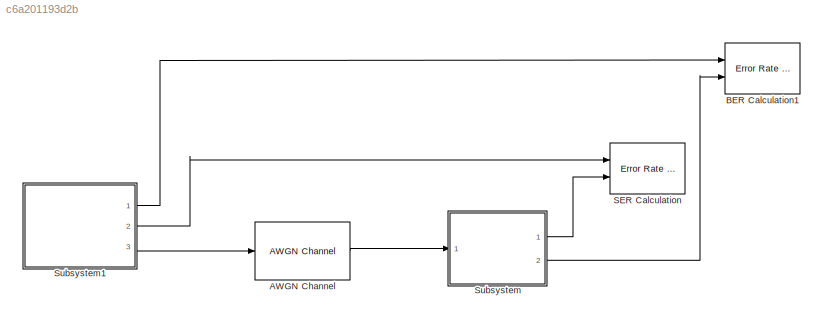
MODEL slx_c6a201193d2b
KIND model
BLOCK [Reference] AWGN Channel  REF=commchan3/AWGN
Channel
  EbNodB = 10
  EsNodB = SNR
  InputProcessing = Columns as channels (frame based)
  Ports = [1, 1]
  Ps = 5
  SNRdB = 10
  SourceBlock = commchan3/AWGN\nChannel
  SourceType = AWGN Channel
  Tsym = 1/100000
  UserDataPersistent = on
  bitsPerSym = 1
  noiseMode = Signal to noise ratio  (Es/No)
  seed = 67
  variance = 1
BLOCK [Reference] BER Calculation1  REF=commsink2/Error Rate
Calculation
  N = 0
  PMode = Workspace
  Ports = [2]
  RsMode2 = off
  SourceBlock = commsink2/Error Rate\nCalculation
  SourceType = Error Rate Calculation
  WsName = BER
  cp_mode = Entire frame
  maxBits = 1e6
  numErr = 100
  st_delay = 0
  stop = off
  subframe = []
BLOCK [Reference] SER Calculation  REF=commsink2/Error Rate
Calculation
  N = 0
  PMode = Workspace
  Ports = [2]
  RsMode2 = off
  SourceBlock = commsink2/Error Rate\nCalculation
  SourceType = Error Rate Calculation
  WsName = SER
  cp_mode = Entire frame
  maxBits = 1e6
  numErr = 100
  st_delay = 0
  stop = off
  subframe = []
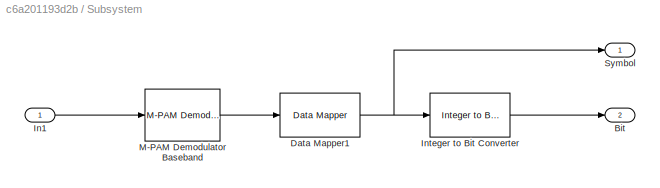
BLOCK [SubSystem] Subsystem
  Ports = [1, 2]
  RequestExecContextInheritance = off
BLOCK [Outport] Subsystem/Bit
  IconDisplay = Port number
  Port = 2
BLOCK [Reference] Subsystem/Data Mapper1  REF=commutil2/Data Mapper
  M = 4
  MapMode = Binary to Gray
  MapVec = [0 1 3 2 7 6 4 5]
  Ports = [1, 1]
  SourceBlock = commutil2/Data Mapper
  SourceType = Data Mapper
BLOCK [Inport] Subsystem/In1
  IconDisplay = Port number
BLOCK [Reference] Subsystem/Integer to Bit Converter  REF=commutil2/Integer to Bit
Converter
  Ports = [1, 1]
  SourceBlock = commutil2/Integer to Bit\nConverter
  SourceType = Integer to Bit Converter
  bitOrder = MSB first
  nbits = 2
  outDtype = Inherit via internal rule
  signedInputValues = Unsigned
BLOCK [Reference] Subsystem/M-PAM Demodulator Baseband  REF=commdigbbndam3/M-PAM
Demodulator
Baseband
  AvgPow = 1
  Dec = Gray
  M = 4
  MinDist = 2
  OutType = Integer
  PeakPow = 1
  Ports = [1, 1]
  PowType = Min. distance between symbols
  SourceBlock = commdigbbndam3/M-PAM\nDemodulator\nBaseband
  SourceType = M-PAM Demodulator Baseband
  denormFactorDTMode = Same word length as input
  denormFactorWordLen = 16
  outDtype1 = Inherit via internal rule
  outDtype2 = Inherit via internal rule
  prodOutDTMode = Inherit via internal rule
  prodOutOverflowMode = Wrap
  prodOutRoundingMode = Floor
  prodOutWordLen = 16
  sumDTMode = Inherit via internal rule
  sumWordLen = 16
BLOCK [Outport] Subsystem/Symbol
  IconDisplay = Port number
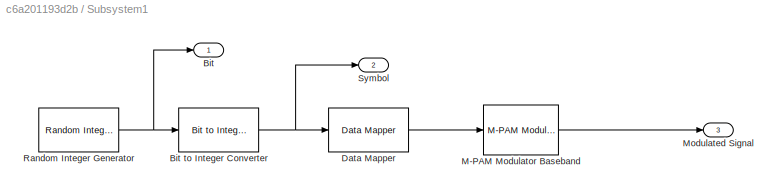
BLOCK [SubSystem] Subsystem1
  Ports = [0, 3]
  RequestExecContextInheritance = off
BLOCK [Outport] Subsystem1/Bit
  IconDisplay = Port number
BLOCK [Reference] Subsystem1/Bit to Integer Converter  REF=commutil2/Bit to Integer
Converter
  Ports = [1, 1]
  SourceBlock = commutil2/Bit to Integer\nConverter
  SourceType = Bit to Integer Converter
  bitOrder = MSB first
  nbits = 2
  outDtype = Inherit via internal rule
  outDtypeSigned = Inherit via internal rule
  signedOutputValues = Unsigned
BLOCK [Reference] Subsystem1/Data Mapper  REF=commutil2/Data Mapper
  M = 4
  MapMode = Binary to Gray
  MapVec = [0 1 3 2 7 6 4 5]
  Ports = [1, 1]
  SourceBlock = commutil2/Data Mapper
  SourceType = Data Mapper
BLOCK [Reference] Subsystem1/M-PAM Modulator Baseband  REF=commdigbbndam3/M-PAM
Modulator
Baseband
  AvgPow = 1
  Enc = Gray
  InType = Integer
  M = 4
  MinDist = 2
  PeakPow = 1
  Ports = [1, 1]
  PowType = Min. distance between symbols
  SourceBlock = commdigbbndam3/M-PAM\nModulator\nBaseband
  SourceType = M-PAM Modulator Baseband
  outDtype = double
  outFracLen = 15
  outFracLenMode = Best precision
  outUDDataType = sfix(16)
  outWordLen = 16
BLOCK [Outport] Subsystem1/Modulated Signal
  IconDisplay = Port number
  Port = 3
BLOCK [Reference] Subsystem1/Random Integer Generator  REF=commrandsrc2/Random Integer
Generator
  Ports = [0, 1]
  SourceBlock = commrandsrc2/Random Integer\nGenerator
  SourceType = Random Integer Generator
  Ts = 1/200000
  frameBased = on
  mul = 2
  orient = off
  outDataType = double
  sampPerFrame = 200000
  seed = 37
BLOCK [Outport] Subsystem1/Symbol
  IconDisplay = Port number
  Port = 2
LINE AWGN Channel:1 -> Subsystem:1
NET Subsystem/Data Mapper1:1 -> Subsystem/Integer to Bit Converter:1, Subsystem/Symbol:1
LINE Subsystem/In1:1 -> Subsystem/M-PAM Demodulator Baseband:1
LINE Subsystem/Integer to Bit Converter:1 -> Subsystem/Bit:1
LINE Subsystem/M-PAM Demodulator Baseband:1 -> Subsystem/Data Mapper1:1
NET Subsystem1/Bit to Integer Converter:1 -> Subsystem1/Data Mapper:1, Subsystem1/Symbol:1
LINE Subsystem1/Data Mapper:1 -> Subsystem1/M-PAM Modulator Baseband:1
LINE Subsystem1/M-PAM Modulator Baseband:1 -> Subsystem1/Modulated Signal:1
NET Subsystem1/Random Integer Generator:1 -> Subsystem1/Bit to Integer Converter:1, Subsystem1/Bit:1
LINE Subsystem1:1 -> BER Calculation1:1
LINE Subsystem1:2 -> SER Calculation:1
LINE Subsystem1:3 -> AWGN Channel:1
LINE Subsystem:1 -> SER Calculation:2
LINE Subsystem:2 -> BER Calculation1:2
note: NET lines group one-source signal fan-out (src -> all destinations, sorted); 1:1 wires keep LINE
